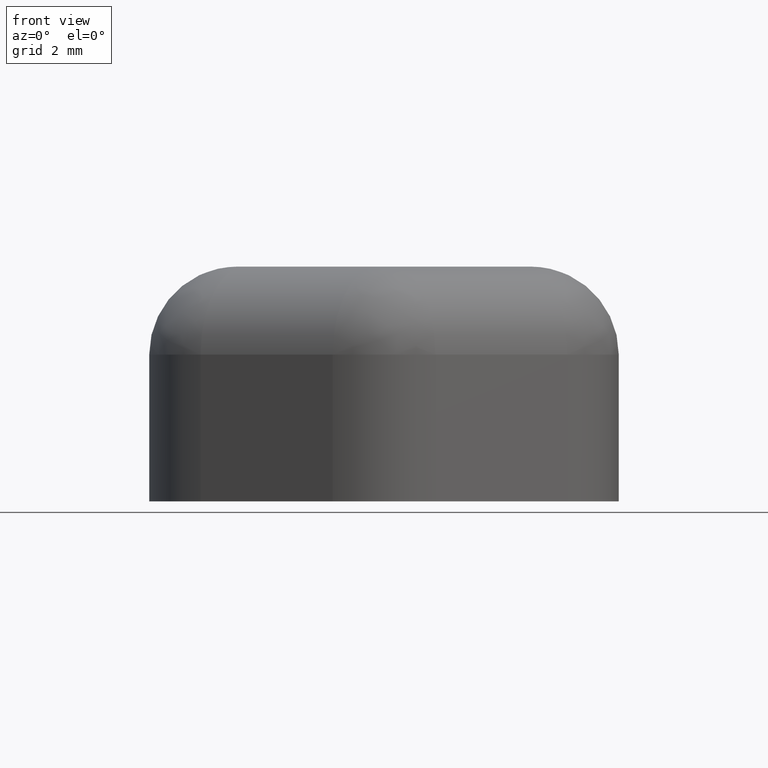
[diagram: clean part render]
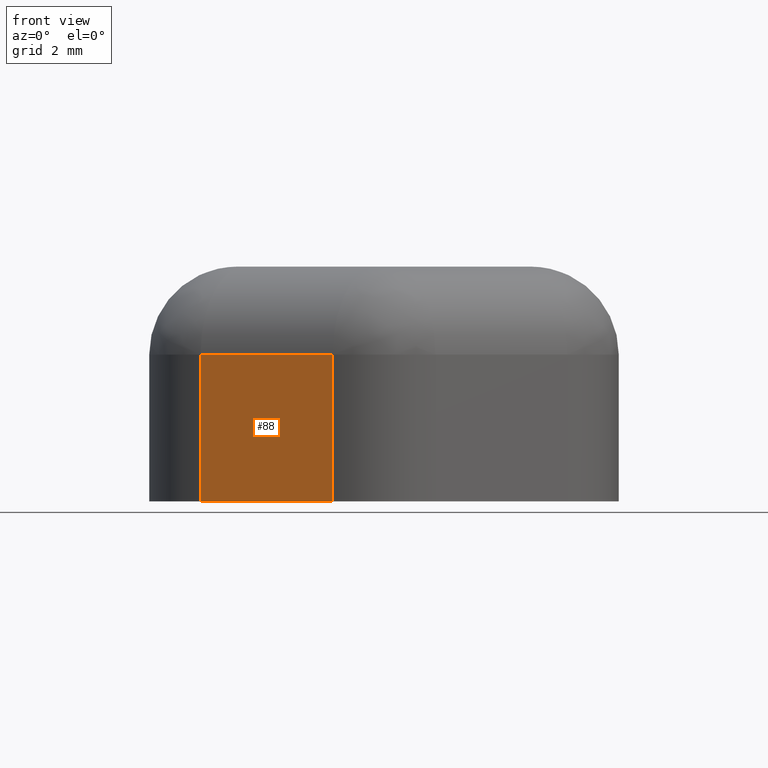
[diagram: same view with one face highlighted and labeled with its STEP entity id]
A machine part, front view. The second image highlights one B-rep face of the part: STEP entity #88.
In plain terms, the highlighted planar face has unit normal (-0.5, -0.866, -0).
Its self-contained STEP definition (entity closure, byte-faithful):
#88 = ADVANCED_FACE( '', ( #142 ), #143, .T. );
#142 = FACE_OUTER_BOUND( '', #221, .T. );
#143 = PLANE( '', #222 );
#221 = EDGE_LOOP( '', ( #524, #525, #526, #527 ) );
#222 = AXIS2_PLACEMENT_3D( '', #528, #529, #530 );
#524 = ORIENTED_EDGE( '', *, *, #753, .F. );
#525 = ORIENTED_EDGE( '', *, *, #754, .T. );
#526 = ORIENTED_EDGE( '', *, *, #755, .T. );
#527 = ORIENTED_EDGE( '', *, *, #705, .F. );
#528 = CARTESIAN_POINT( '', ( -1.75000000000000, -8.22724133595217, 8.00000000000000 ) );
#529 = DIRECTION( '', ( -0.500000000000000, -0.866025403784439, -6.12303176911188E-017 ) );
#530 = DIRECTION( '', ( 0.866025403784439, -0.500000000000000, 1.06054021204601E-016 ) );
#705 = EDGE_CURVE( '', #809, #811, #812, .T. );
#753 = EDGE_CURVE( '', #893, #809, #895, .T. );
#754 = EDGE_CURVE( '', #893, #896, #897, .T. );
#755 = EDGE_CURVE( '', #896, #811, #898, .T. );
#809 = VERTEX_POINT( '', #969 );
#811 = VERTEX_POINT( '', #971 );
#812 = LINE( '', #972, #973 );
#893 = VERTEX_POINT( '', #1083 );
#895 = LINE( '', #1085, #1086 );
#896 = VERTEX_POINT( '', #1087 );
#897 = LINE( '', #1088, #1089 );
#898 = LINE( '', #1090, #1091 );
#969 = CARTESIAN_POINT( '', ( -1.75000000000000, -8.22724133595217, -2.14306111918916E-016 ) );
#971 = CARTESIAN_POINT( '', ( -6.25000000000000, -5.62916512459886, -7.65378971138985E-016 ) );
#972 = CARTESIAN_POINT( '', ( -1.75000000000000, -8.22724133595217, -2.14306111918916E-016 ) );
#973 = VECTOR( '', #1177, 1000.00000000000 );
#1083 = CARTESIAN_POINT( '', ( -1.75000000000000, -8.22724133595217, 5.00000000000000 ) );
#1085 = CARTESIAN_POINT( '', ( -1.75000000000000, -8.22724133595217, 8.00000000000000 ) );
#1086 = VECTOR( '', #1261, 1000.00000000000 );
#1087 = CARTESIAN_POINT( '', ( -6.25000000000000, -5.62916512459886, 5.00000000000000 ) );
#1088 = CARTESIAN_POINT( '', ( -6.25000000000000, -5.62916512459885, 5.00000000000000 ) );
#1089 = VECTOR( '', #1262, 1000.00000000000 );
#1090 = CARTESIAN_POINT( '', ( -6.25000000000000, -5.62916512459886, 8.00000000000000 ) );
#1091 = VECTOR( '', #1263, 1000.00000000000 );
#1177 = DIRECTION( '', ( -0.866025403784439, 0.500000000000000, -1.06054021204601E-016 ) );
#1261 = DIRECTION( '', ( 1.22460635382238E-016, 0.000000000000000, -1.00000000000000 ) );
#1262 = DIRECTION( '', ( -0.866025403784439, 0.500000000000000, -1.06054021204601E-016 ) );
#1263 = DIRECTION( '', ( 1.22460635382238E-016, 0.000000000000000, -1.00000000000000 ) );